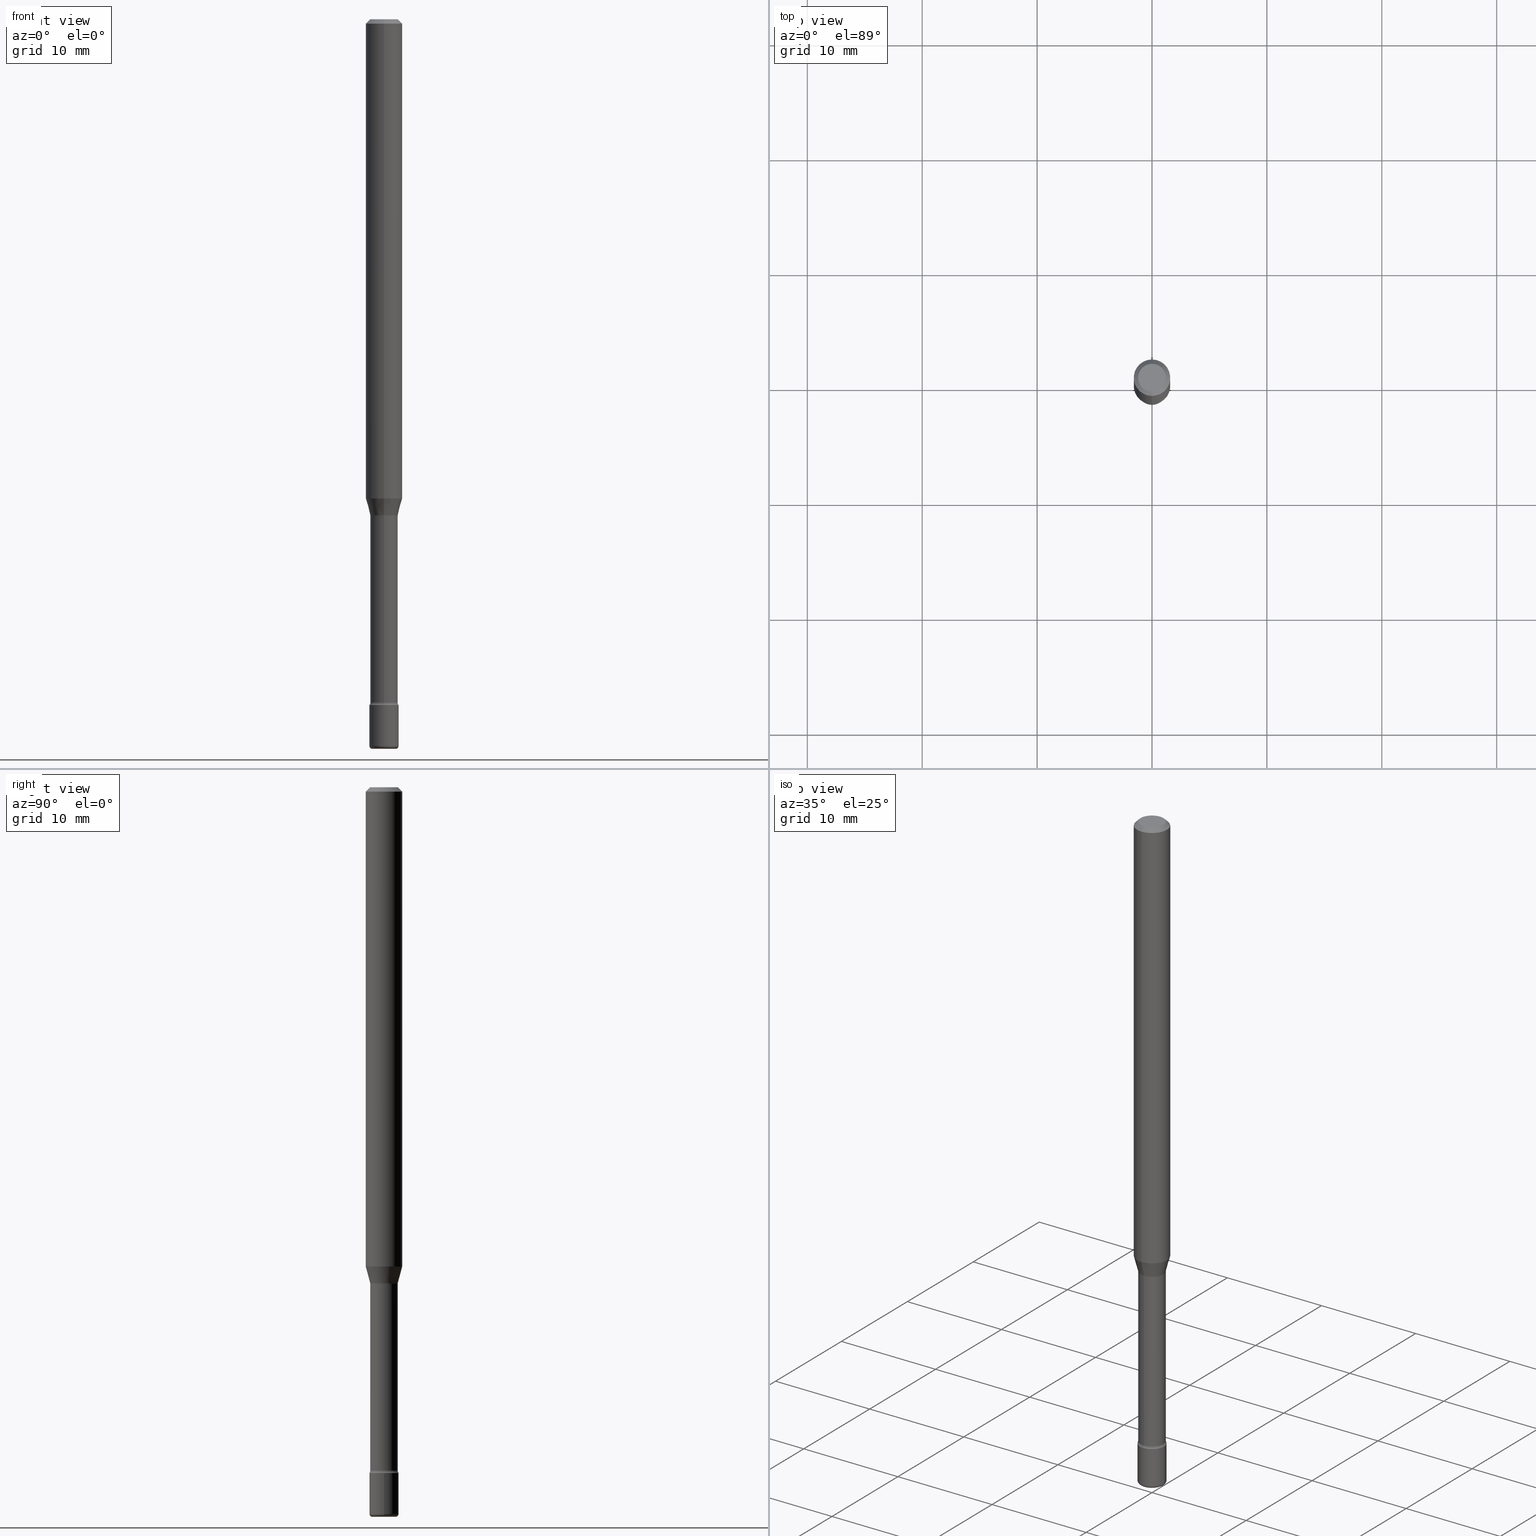
[diagram: canonical four-view strip — front | top / right | iso, engineering-drawing reading convention]
A machine part, canonical four-view strip (front | top / right | iso — engineering-drawing reading convention). The complete STEP part file that produces these views, byte-faithful:
ISO-10303-21;
HEADER;
FILE_DESCRIPTION (( 'STEP AP203' ),
    '1' );
FILE_NAME ('08963.STEP',
    '2024-03-06T20:12:44',
    ( '' ),
    ( '' ),
    'SwSTEP 2.0',
    'SolidWorks 2023',
    '' );
FILE_SCHEMA (( 'CONFIG_CONTROL_DESIGN' ));
ENDSEC;

DATA;
#1 = VERTEX_POINT ( 'NONE', #278 ) ;
#2 = DIRECTION ( 'NONE',  ( -6.982962677686265922E-15, -1.000000000000000000, 5.749913744050249041E-15 ) ) ;
#3 = DIRECTION ( 'NONE',  ( -2.445484649858063703E-29, 3.491458649801748196E-15, 1.000000000000000000 ) ) ;
#4 = AXIS2_PLACEMENT_3D ( 'NONE', #508, #110, #329 ) ;
#5 = AXIS2_PLACEMENT_3D ( 'NONE', #330, #46, #301 ) ;
#6 = PERSON_AND_ORGANIZATION_ROLE ( 'design_supplier' ) ;
#7 = PLANE ( 'NONE',  #221 ) ;
#8 = EDGE_LOOP ( 'NONE', ( #51, #176 ) ) ;
#9 = CC_DESIGN_PERSON_AND_ORGANIZATION_ASSIGNMENT ( #64, #30, ( #14 ) ) ;
#10 = ADVANCED_FACE ( 'NONE', ( #493 ), #106, .T. ) ;
#11 = DIRECTION ( 'NONE',  ( -6.982962677686266711E-15, -1.000000000000000000, 3.491481338843145583E-15 ) ) ;
#12 = ORIENTED_EDGE ( 'NONE', *, *, #192, .T. ) ;
#13 = ADVANCED_BREP_SHAPE_REPRESENTATION ( '08963', ( #469, #461, #223 ), #284 ) ;
#14 = PRODUCT_DEFINITION ( 'UNKNOWN', '', #256, #78 ) ;
#15 = CARTESIAN_POINT ( 'NONE',  ( -4.364351673553916201E-16, -0.06250000000000000000, 6.962895645038553008E-16 ) ) ;
#16 = ORIENTED_EDGE ( 'NONE', *, *, #134, .T. ) ;
#17 = DIRECTION ( 'NONE',  ( -1.000000000000000000, 6.982962677686265922E-15, -4.883557194083112340E-29 ) ) ;
#18 = AXIS2_PLACEMENT_3D ( 'NONE', #75, #546, #66 ) ;
#19 = EDGE_CURVE ( 'NONE', #304, #209, #375, .T. ) ;
#20 = VERTEX_POINT ( 'NONE', #151 ) ;
#21 = DIRECTION ( 'NONE',  ( -2.445484649858063703E-29, 3.491458649801748196E-15, 1.000000000000000000 ) ) ;
#22 = DIRECTION ( 'NONE',  ( -2.445468806185136597E-29, 3.491481338843145583E-15, 1.000000000000000000 ) ) ;
#23 = CARTESIAN_POINT ( 'NONE',  ( -0.05000000000000000971, 3.552713678800501620E-16, -2.459467545127453311E-30 ) ) ;
#24 = CARTESIAN_POINT ( 'NONE',  ( -0.05000000000000004441, -8.338517165839381307E-15, -2.489999999999999769 ) ) ;
#25 = DIRECTION ( 'NONE',  ( -2.445468806185136877E-29, 3.491481338843145188E-15, 1.000000000000000000 ) ) ;
#26 = AXIS2_PLACEMENT_3D ( 'NONE', #49, #3, #94 ) ;
#27 = CARTESIAN_POINT ( 'NONE',  ( -3.281992458512128914E-16, -0.04700000000000593980, -1.701974787463810701 ) ) ;
#28 = CC_DESIGN_APPROVAL ( #293, ( #256 ) ) ;
#29 = DIRECTION ( 'NONE',  ( 1.000000000000000000, -6.982962677686274599E-15, 0.000000000000000000 ) ) ;
#30 = PERSON_AND_ORGANIZATION_ROLE ( 'creator' ) ;
#31 = DIRECTION ( 'NONE',  ( -2.445484649858063983E-29, 3.491458649801747802E-15, 1.000000000000000000 ) ) ;
#32 = DIRECTION ( 'NONE',  ( -1.000000000000000000, 6.982962677686265922E-15, -4.876176775795935793E-29 ) ) ;
#33 = DATE_AND_TIME ( #420, #570 ) ;
#34 = CYLINDRICAL_SURFACE ( 'NONE', #414, 0.05000000000000000971 ) ;
#35 = EDGE_CURVE ( 'NONE', #542, #219, #370, .T. ) ;
#36 = CIRCLE ( 'NONE', #253, 0.05000000000000000971 ) ;
#37 = ORIENTED_EDGE ( 'NONE', *, *, #216, .T. ) ;
#38 = DIRECTION ( 'NONE',  ( 6.982962677686265922E-15, 1.000000000000000000, -3.483106191921935554E-15 ) ) ;
#39 = ORIENTED_EDGE ( 'NONE', *, *, #515, .F. ) ;
#40 = DIRECTION ( 'NONE',  ( 7.105427357600997914E-15, 1.000000000000000000, 0.000000000000000000 ) ) ;
#41 = EDGE_CURVE ( 'NONE', #1, #514, #505, .T. ) ;
#42 = ORIENTED_EDGE ( 'NONE', *, *, #374, .F. ) ;
#43 = CARTESIAN_POINT ( 'NONE',  ( 6.113672015462842613E-29, -8.728703347107864943E-15, -2.500000000000000000 ) ) ;
#44 = CIRCLE ( 'NONE', #300, 0.04751111260566397154 ) ;
#45 = ORIENTED_EDGE ( 'NONE', *, *, #313, .T. ) ;
#46 = DIRECTION ( 'NONE',  ( -2.445484649858063703E-29, 3.491458649801748196E-15, 1.000000000000000000 ) ) ;
#47 = ORIENTED_EDGE ( 'NONE', *, *, #298, .F. ) ;
#48 = APPLICATION_PROTOCOL_DEFINITION ( 'international standard', 'config_control_design', 1994, #62 ) ;
#49 = CARTESIAN_POINT ( 'NONE',  ( -1.169113584055446105E-44, 1.669184350826100908E-30, 4.780733988912460139E-16 ) ) ;
#50 = ADVANCED_FACE ( 'NONE', ( #194 ), #422, .T. ) ;
#51 = ORIENTED_EDGE ( 'NONE', *, *, #336, .T. ) ;
#52 = CIRCLE ( 'NONE', #4, 0.06250000000000000000 ) ;
#53 = ORGANIZATION ( 'UNSPECIFIED', 'UNSPECIFIED', '' ) ;
#54 = CC_DESIGN_SECURITY_CLASSIFICATION ( #303, ( #256 ) ) ;
#55 = CARTESIAN_POINT ( 'NONE',  ( 4.440892098501028481E-16, 0.06249999999999429623, -1.642153212482682978 ) ) ;
#56 = ORIENTED_EDGE ( 'NONE', *, *, #112, .F. ) ;
#57 = DIRECTION ( 'NONE',  ( 6.982962677686265922E-15, 1.000000000000000000, -3.491458649801747802E-15 ) ) ;
#58 = VERTEX_POINT ( 'NONE', #24 ) ;
#59 = EDGE_CURVE ( 'NONE', #437, #436, #52, .T. ) ;
#60 = CARTESIAN_POINT ( 'NONE',  ( -3.317683261006594313E-16, -0.04751111260566989736, -1.698092501787272779 ) ) ;
#61 = ORIENTED_EDGE ( 'NONE', *, *, #451, .F. ) ;
#62 = APPLICATION_CONTEXT ( 'configuration controlled 3d designs of mechanical parts and assemblies' ) ;
#63 = DIRECTION ( 'NONE',  ( -6.982962677686265922E-15, -1.000000000000000000, 3.491458649801748196E-15 ) ) ;
#64 = PERSON_AND_ORGANIZATION ( #444, #53 ) ;
#65 = CARTESIAN_POINT ( 'NONE',  ( 3.552713678801077488E-16, 0.04999999999999183570, -2.350000000000000533 ) ) ;
#66 = DIRECTION ( 'NONE',  ( -6.982962677686272233E-15, -1.000000000000000000, 0.000000000000000000 ) ) ;
#67 = CARTESIAN_POINT ( 'NONE',  ( 4.162153217188190492E-29, -5.942374593435014667E-15, -1.701974787463810923 ) ) ;
#68 = CYLINDRICAL_SURFACE ( 'NONE', #5, 0.04700000000000000705 ) ;
#69 = APPROVAL_STATUS ( 'not_yet_approved' ) ;
#70 = DIRECTION ( 'NONE',  ( -2.445468806185136597E-29, 3.491481338843145583E-15, 1.000000000000000000 ) ) ;
#71 = FACE_OUTER_BOUND ( 'NONE', #532, .T. ) ;
#72 = PERSON_AND_ORGANIZATION_ROLE ( 'design_owner' ) ;
#73 = AXIS2_PLACEMENT_3D ( 'NONE', #489, #449, #103 ) ;
#74 = LINE ( 'NONE', #325, #537 ) ;
#75 = CARTESIAN_POINT ( 'NONE',  ( -4.329436860164915685E-16, -0.06200000000000822215, -2.340999999999999748 ) ) ;
#76 = ADVANCED_FACE ( 'NONE', ( #448 ), #502, .F. ) ;
#77 = CARTESIAN_POINT ( 'NONE',  ( 5.724879565317726717E-29, -8.173504699185892323E-15, -2.340999999999999748 ) ) ;
#78 = DESIGN_CONTEXT ( 'detailed design', #276, 'design' ) ;
#79 =( LENGTH_UNIT ( ) NAMED_UNIT ( * ) SI_UNIT ( $, .METRE. ) );
#80 = CIRCLE ( 'NONE', #390, 0.06250000000000000000 ) ;
#81 = AXIS2_PLACEMENT_3D ( 'NONE', #529, #259, #429 ) ;
#82 = ORIENTED_EDGE ( 'NONE', *, *, #451, .T. ) ;
#83 = DIRECTION ( 'NONE',  ( 1.000000000000000000, 0.000000000000000000, 0.000000000000000000 ) ) ;
#84 = PERSON_AND_ORGANIZATION_ROLE ( 'creator' ) ;
#85 = EDGE_CURVE ( 'NONE', #378, #514, #497, .T. ) ;
#86 = CARTESIAN_POINT ( 'NONE',  ( 0.000000000000000000, 0.000000000000000000, 0.000000000000000000 ) ) ;
#87 = ORIENTED_EDGE ( 'NONE', *, *, #313, .F. ) ;
#88 = LINE ( 'NONE', #161, #302 ) ;
#89 = VECTOR ( 'NONE', #25, 39.37007874015748143 ) ;
#90 = ORIENTED_EDGE ( 'NONE', *, *, #458, .F. ) ;
#91 = CARTESIAN_POINT ( 'NONE',  ( 4.152659147159852925E-29, -5.928819753528663984E-15, -1.698092501787273001 ) ) ;
#92 = CC_DESIGN_PERSON_AND_ORGANIZATION_ASSIGNMENT ( #471, #6, ( #256 ) ) ;
#93 = EDGE_CURVE ( 'NONE', #58, #1, #36, .T. ) ;
#94 = DIRECTION ( 'NONE',  ( -6.982962677686265922E-15, -1.000000000000000000, 3.491458649801746619E-15 ) ) ;
#95 = CARTESIAN_POINT ( 'NONE',  ( 4.162126251656327251E-29, -5.942413209611424938E-15, -1.701974787463810923 ) ) ;
#96 = VERTEX_POINT ( 'NONE', #65 ) ;
#97 = AXIS2_PLACEMENT_3D ( 'NONE', #287, #143, #119 ) ;
#98 = AXIS2_PLACEMENT_3D ( 'NONE', #365, #563, #32 ) ;
#99 = CARTESIAN_POINT ( 'NONE',  ( 0.04000000000000000083, -8.973107040826881753E-15, -2.489999999999999769 ) ) ;
#100 = ORIENTED_EDGE ( 'NONE', *, *, #128, .F. ) ;
#101 = EDGE_CURVE ( 'NONE', #219, #104, #326, .T. ) ;
#102 = COORDINATED_UNIVERSAL_TIME_OFFSET ( 5, 0, .BEHIND. ) ;
#103 = DIRECTION ( 'NONE',  ( 1.000000000000000000, -6.982962677686267499E-15, 4.876176775795936353E-29 ) ) ;
#104 = VERTEX_POINT ( 'NONE', #27 ) ;
#105 = CARTESIAN_POINT ( 'NONE',  ( -3.317683261006594313E-16, -0.04751111260566989736, -1.698092501787272779 ) ) ;
#106 = CYLINDRICAL_SURFACE ( 'NONE', #26, 0.04700000000000000705 ) ;
#107 = AXIS2_PLACEMENT_3D ( 'NONE', #409, #456, #417 ) ;
#108 = CIRCLE ( 'NONE', #327, 0.04749999999999998668 ) ;
#109 = DIRECTION ( 'NONE',  ( -2.445484649858063983E-29, 3.491458649801747802E-15, 1.000000000000000000 ) ) ;
#110 = DIRECTION ( 'NONE',  ( -2.445484649858063703E-29, 3.491458649801748196E-15, 1.000000000000000000 ) ) ;
#111 = FACE_OUTER_BOUND ( 'NONE', #535, .T. ) ;
#112 = EDGE_CURVE ( 'NONE', #207, #308, #80, .T. ) ;
#113 = CARTESIAN_POINT ( 'NONE',  ( 5.746851694535070554E-29, -8.204981146281391784E-15, -2.350000000000000089 ) ) ;
#114 = DIRECTION ( 'NONE',  ( 1.000000000000000000, -6.982962677686273021E-15, 0.000000000000000000 ) ) ;
#115 = CARTESIAN_POINT ( 'NONE',  ( 6.089217327400989947E-29, -8.693788533719431716E-15, -2.489999999999999769 ) ) ;
#116 = CARTESIAN_POINT ( 'NONE',  ( 4.440892098500625669E-16, 0.06250000000000000000, 2.598572332786367763E-16 ) ) ;
#117 = APPROVAL_ROLE ( '' ) ;
#118 = AXIS2_PLACEMENT_3D ( 'NONE', #43, #262, #382 ) ;
#119 = DIRECTION ( 'NONE',  ( -6.982962677686265133E-15, -1.000000000000000000, 5.463695987328526437E-15 ) ) ;
#120 = LOCAL_TIME ( 15, 12, 44.00000000000000000, #286 ) ;
#121 = DIRECTION ( 'NONE',  ( -6.982962677686265922E-15, -1.000000000000000000, 3.483106191921935554E-15 ) ) ;
#122 = ORIENTED_EDGE ( 'NONE', *, *, #435, .F. ) ;
#123 = CIRCLE ( 'NONE', #81, 0.01500000000000003587 ) ;
#124 = ORIENTED_EDGE ( 'NONE', *, *, #41, .F. ) ;
#125 = ORIENTED_EDGE ( 'NONE', *, *, #515, .T. ) ;
#126 = SECURITY_CLASSIFICATION_LEVEL ( 'unclassified' ) ;
#127 = CIRCLE ( 'NONE', #97, 0.05000000000000000278 ) ;
#128 = EDGE_CURVE ( 'NONE', #354, #437, #74, .T. ) ;
#129 = EDGE_LOOP ( 'NONE', ( #125, #12, #440, #87 ) ) ;
#130 = CARTESIAN_POINT ( 'NONE',  ( -3.281992458511972621E-16, -0.04700000000000817413, -2.340999999999999304 ) ) ;
#131 = ORIENTED_EDGE ( 'NONE', *, *, #336, .F. ) ;
#132 = ORIENTED_EDGE ( 'NONE', *, *, #321, .F. ) ;
#133 = DIRECTION ( 'NONE',  ( -1.807323732225336845E-15, -0.2588190451025191297, 0.9659258262890687563 ) ) ;
#134 = EDGE_CURVE ( 'NONE', #20, #96, #127, .T. ) ;
#135 = ORIENTED_EDGE ( 'NONE', *, *, #307, .T. ) ;
#136 = AXIS2_PLACEMENT_3D ( 'NONE', #454, #70, #142 ) ;
#137 = CONICAL_SURFACE ( 'NONE', #273, 0.06250000000000000000, 0.7853981633974485010 ) ;
#138 = DIRECTION ( 'NONE',  ( -6.982962677686266711E-15, -1.000000000000000000, 5.812442539711199378E-15 ) ) ;
#139 = ORIENTED_EDGE ( 'NONE', *, *, #458, .T. ) ;
#140 = DIRECTION ( 'NONE',  ( 2.445484649858063703E-29, -3.491458649801747802E-15, -1.000000000000000000 ) ) ;
#141 = ORIENTED_EDGE ( 'NONE', *, *, #298, .T. ) ;
#142 = DIRECTION ( 'NONE',  ( 1.000000000000000000, -6.982962677686261977E-15, 4.883557194083110659E-29 ) ) ;
#143 = DIRECTION ( 'NONE',  ( -2.445484649858063703E-29, 3.491458649801748196E-15, 1.000000000000000000 ) ) ;
#144 = EDGE_CURVE ( 'NONE', #96, #20, #401, .T. ) ;
#145 = TOROIDAL_SURFACE ( 'NONE', #136, 0.04000000000000000083, 0.01000000000000009041 ) ;
#146 = VECTOR ( 'NONE', #486, 39.37007874015748143 ) ;
#147 = DIRECTION ( 'NONE',  ( -6.982962677686265922E-15, -1.000000000000000000, 5.749913744050249041E-15 ) ) ;
#148 = PERSON_AND_ORGANIZATION ( #444, #53 ) ;
#149 = CARTESIAN_POINT ( 'NONE',  ( 4.015860473841507545E-29, -5.733510038022390740E-15, -1.642153212482682756 ) ) ;
#150 = DIRECTION ( 'NONE',  ( -2.445484649858063703E-29, 3.491458649801748196E-15, 1.000000000000000000 ) ) ;
#151 = CARTESIAN_POINT ( 'NONE',  ( -3.491481338842560938E-16, -0.05000000000000824618, -2.349999999999999645 ) ) ;
#152 = PLANE ( 'NONE',  #98 ) ;
#153 = DATE_AND_TIME ( #239, #511 ) ;
#154 = ADVANCED_FACE ( 'NONE', ( #499 ), #145, .T. ) ;
#155 = DIRECTION ( 'NONE',  ( -2.445468806185136877E-29, 3.491481338843145188E-15, 1.000000000000000000 ) ) ;
#156 = CARTESIAN_POINT ( 'NONE',  ( 6.625640147717000210E-46, -9.457369277628037380E-32, -2.709026492660582810E-17 ) ) ;
#157 = CIRCLE ( 'NONE', #318, 0.06250000000000000000 ) ;
#158 = AXIS2_PLACEMENT_3D ( 'NONE', #172, #462, #40 ) ;
#159 = CC_DESIGN_APPROVAL ( #450, ( #303 ) ) ;
#160 = DIRECTION ( 'NONE',  ( -6.982962677686265133E-15, -1.000000000000000000, 3.491458649801748196E-15 ) ) ;
#161 = CARTESIAN_POINT ( 'NONE',  ( 3.375867592983881173E-16, 0.04751111260565804573, -1.698092501787273223 ) ) ;
#162 = EDGE_LOOP ( 'NONE', ( #90, #430, #433, #523 ) ) ;
#163 = PRODUCT_RELATED_PRODUCT_CATEGORY ( 'detail', '', ( #306 ) ) ;
#164 = CARTESIAN_POINT ( 'NONE',  ( 5.746851694535070554E-29, -8.204981146281391784E-15, -2.350000000000000089 ) ) ;
#165 = CONICAL_SURFACE ( 'NONE', #213, 0.06250000000000000000, 0.7853981633974485010 ) ;
#166 = ORIENTED_EDGE ( 'NONE', *, *, #128, .T. ) ;
#167 = FACE_OUTER_BOUND ( 'NONE', #426, .T. ) ;
#168 = ORIENTED_EDGE ( 'NONE', *, *, #441, .T. ) ;
#169 = FACE_OUTER_BOUND ( 'NONE', #272, .T. ) ;
#170 = CALENDAR_DATE ( 2024, 6, 3 ) ;
#171 = ADVANCED_FACE ( 'NONE', ( #290 ), #7, .F. ) ;
#172 = CARTESIAN_POINT ( 'NONE',  ( 4.405364961713037245E-16, 0.06199999999999406680, -1.701974787463811145 ) ) ;
#173 = ORIENTED_EDGE ( 'NONE', *, *, #208, .T. ) ;
#174 = AXIS2_PLACEMENT_3D ( 'NONE', #99, #11, #179 ) ;
#175 = DIRECTION ( 'NONE',  ( 7.105427357601001859E-15, 1.000000000000000000, -3.491481338843145583E-15 ) ) ;
#176 = ORIENTED_EDGE ( 'NONE', *, *, #85, .T. ) ;
#177 = EDGE_CURVE ( 'NONE', #104, #219, #195, .T. ) ;
#178 = PERSON_AND_ORGANIZATION_ROLE ( 'classification_officer' ) ;
#179 = DIRECTION ( 'NONE',  ( 1.000000000000000000, -6.982962677686269077E-15, 0.000000000000000000 ) ) ;
#180 = ORIENTED_EDGE ( 'NONE', *, *, #35, .T. ) ;
#181 = CARTESIAN_POINT ( 'NONE',  ( -3.773273898774339776E-16, -0.04749999999999998668, 1.387540209389771689E-16 ) ) ;
#182 = VERTEX_POINT ( 'NONE', #181 ) ;
#183 = CIRCLE ( 'NONE', #438, 0.01500000000000003587 ) ;
#184 = CIRCLE ( 'NONE', #118, 0.04000000000000000083 ) ;
#185 = DATE_AND_TIME ( #170, #562 ) ;
#186 = LOCAL_TIME ( 15, 12, 44.00000000000000000, #102 ) ;
#187 = DIRECTION ( 'NONE',  ( -2.445484649858063703E-29, 3.491458649801748196E-15, 1.000000000000000000 ) ) ;
#188 = ORIENTED_EDGE ( 'NONE', *, *, #483, .F. ) ;
#189 = DIRECTION ( 'NONE',  ( -6.982962677686265922E-15, -1.000000000000000000, 3.491458649801748196E-15 ) ) ;
#190 = APPLICATION_PROTOCOL_DEFINITION ( 'international standard', 'config_control_design', 1994, #276 ) ;
#191 = DIRECTION ( 'NONE',  ( 1.000000000000000000, -6.982962677686274599E-15, 0.000000000000000000 ) ) ;
#192 = EDGE_CURVE ( 'NONE', #304, #58, #548, .T. ) ;
#193 = CARTESIAN_POINT ( 'NONE',  ( 4.152659147159852925E-29, -5.928819753528663984E-15, -1.698092501787273001 ) ) ;
#194 = FACE_OUTER_BOUND ( 'NONE', #345, .T. ) ;
#195 = CIRCLE ( 'NONE', #367, 0.04699999999999999317 ) ;
#196 = AXIS2_PLACEMENT_3D ( 'NONE', #377, #335, #455 ) ;
#197 = CARTESIAN_POINT ( 'NONE',  ( 3.668226974787102280E-31, -5.237187974702632377E-17, -0.01500000000000002720 ) ) ;
#198 = CARTESIAN_POINT ( 'NONE',  ( 5.746888927166449379E-29, -8.204927827034108794E-15, -2.350000000000000089 ) ) ;
#199 = ADVANCED_FACE ( 'NONE', ( #230 ), #202, .F. ) ;
#200 = DIRECTION ( 'NONE',  ( 2.445484649858063703E-29, -3.491458649801748196E-15, -1.000000000000000000 ) ) ;
#201 = DIRECTION ( 'NONE',  ( -2.445484649858063703E-29, 3.491458649801748196E-15, 1.000000000000000000 ) ) ;
#202 = TOROIDAL_SURFACE ( 'NONE', #527, 0.06200000000000004813, 0.01500000000000004281 ) ;
#203 = LINE ( 'NONE', #116, #368 ) ;
#204 = CIRCLE ( 'NONE', #234, 0.04749999999999998668 ) ;
#205 = APPROVAL_PERSON_ORGANIZATION ( #445, #450, #481 ) ;
#206 = PERSON_AND_ORGANIZATION ( #444, #53 ) ;
#207 = VERTEX_POINT ( 'NONE', #274 ) ;
#208 = EDGE_CURVE ( 'NONE', #207, #436, #355, .T. ) ;
#209 = VERTEX_POINT ( 'NONE', #353 ) ;
#210 = CARTESIAN_POINT ( 'NONE',  ( 4.152659147159852925E-29, -5.928819753528663984E-15, -1.698092501787273001 ) ) ;
#211 = ORIENTED_EDGE ( 'NONE', *, *, #101, .T. ) ;
#212 = LENGTH_MEASURE_WITH_UNIT ( LENGTH_MEASURE( 0.02539999999999999897 ), #79 );
#213 = AXIS2_PLACEMENT_3D ( 'NONE', #197, #200, #503 ) ;
#214 = EDGE_LOOP ( 'NONE', ( #37, #484, #56, #47 ) ) ;
#215 = DIRECTION ( 'NONE',  ( 1.000000000000000000, -6.982962677686265922E-15, 4.876176775795935793E-29 ) ) ;
#216 = EDGE_CURVE ( 'NONE', #222, #266, #44, .T. ) ;
#217 = CARTESIAN_POINT ( 'NONE',  ( 0.05000000000000000278, -8.554129280165706697E-15, -2.350000000000000089 ) ) ;
#218 = PERSON_AND_ORGANIZATION ( #444, #53 ) ;
#219 = VERTEX_POINT ( 'NONE', #394 ) ;
#220 = CARTESIAN_POINT ( 'NONE',  ( -0.04000000000000000083, -8.391501709321602173E-15, -2.500000000000000000 ) ) ;
#221 = AXIS2_PLACEMENT_3D ( 'NONE', #324, #140, #57 ) ;
#222 = VERTEX_POINT ( 'NONE', #105 ) ;
#223 = AXIS2_PLACEMENT_3D ( 'NONE', #86, #516, #83 ) ;
#224 = CARTESIAN_POINT ( 'NONE',  ( 4.162126251656327251E-29, -5.942413209611424938E-15, -1.701974787463810923 ) ) ;
#225 = ORIENTED_EDGE ( 'NONE', *, *, #564, .T. ) ;
#226 = CC_DESIGN_DATE_AND_TIME_ASSIGNMENT ( #153, #408, ( #14 ) ) ;
#227 = DIRECTION ( 'NONE',  ( -2.445484649858063703E-29, 3.491458649801748196E-15, 1.000000000000000000 ) ) ;
#228 = ORIENTED_EDGE ( 'NONE', *, *, #397, .F. ) ;
#229 = COORDINATED_UNIVERSAL_TIME_OFFSET ( 5, 0, .BEHIND. ) ;
#230 = FACE_OUTER_BOUND ( 'NONE', #347, .T. ) ;
#231 = ORIENTED_EDGE ( 'NONE', *, *, #208, .F. ) ;
#232 = ORIENTED_EDGE ( 'NONE', *, *, #59, .F. ) ;
#233 = VECTOR ( 'NONE', #31, 39.37007874015748143 ) ;
#234 = AXIS2_PLACEMENT_3D ( 'NONE', #558, #512, #160 ) ;
#235 = FACE_OUTER_BOUND ( 'NONE', #356, .T. ) ;
#236 = EDGE_CURVE ( 'NONE', #222, #104, #183, .T. ) ;
#237 = DIRECTION ( 'NONE',  ( 1.000000000000000000, -6.982962677686261977E-15, 4.883557194083110659E-29 ) ) ;
#238 = FACE_OUTER_BOUND ( 'NONE', #393, .T. ) ;
#239 = CALENDAR_DATE ( 2024, 6, 3 ) ;
#240 = LINE ( 'NONE', #23, #89 ) ;
#241 = CALENDAR_DATE ( 2024, 6, 3 ) ;
#242 = DIRECTION ( 'NONE',  ( -6.982962677686265922E-15, -1.000000000000000000, 3.491458649801747802E-15 ) ) ;
#243 = ADVANCED_FACE ( 'NONE', ( #482 ), #283, .F. ) ;
#244 = CLOSED_SHELL ( 'NONE', ( #279, #154, #551, #388, #50, #358 ) ) ;
#245 = CIRCLE ( 'NONE', #423, 0.06250000000000000000 ) ;
#246 = CYLINDRICAL_SURFACE ( 'NONE', #568, 0.06250000000000000000 ) ;
#247 = PERSON_AND_ORGANIZATION ( #444, #53 ) ;
#248 = DIRECTION ( 'NONE',  ( -2.445484649858063703E-29, 3.491458649801748196E-15, 1.000000000000000000 ) ) ;
#249 = DIRECTION ( 'NONE',  ( -2.445468806185136597E-29, 3.491481338843145583E-15, 1.000000000000000000 ) ) ;
#250 = COORDINATED_UNIVERSAL_TIME_OFFSET ( 5, 0, .BEHIND. ) ;
#251 = DIRECTION ( 'NONE',  ( -2.445484649858063703E-29, 3.491458649801748196E-15, 1.000000000000000000 ) ) ;
#252 = ORIENTED_EDGE ( 'NONE', *, *, #504, .T. ) ;
#253 = AXIS2_PLACEMENT_3D ( 'NONE', #115, #557, #333 ) ;
#254 = PERSON_AND_ORGANIZATION ( #444, #53 ) ;
#255 = AXIS2_PLACEMENT_3D ( 'NONE', #77, #299, #407 ) ;
#256 = PRODUCT_DEFINITION_FORMATION_WITH_SPECIFIED_SOURCE ( 'ANY', '', #306, .NOT_KNOWN. ) ;
#257 = EDGE_CURVE ( 'NONE', #182, #436, #398, .T. ) ;
#258 = ORIENTED_EDGE ( 'NONE', *, *, #177, .F. ) ;
#259 = DIRECTION ( 'NONE',  ( 1.000000000000000000, -7.105427357601001070E-15, 4.926315230681463443E-29 ) ) ;
#260 = FACE_OUTER_BOUND ( 'NONE', #214, .T. ) ;
#261 = EDGE_LOOP ( 'NONE', ( #480, #381, #386, #311 ) ) ;
#262 = DIRECTION ( 'NONE',  ( -2.445468806185136597E-29, 3.491481338843145583E-15, 1.000000000000000000 ) ) ;
#263 = AXIS2_PLACEMENT_3D ( 'NONE', #113, #366, #191 ) ;
#264 = AXIS2_PLACEMENT_3D ( 'NONE', #91, #473, #2 ) ;
#265 = APPROVAL_PERSON_ORGANIZATION ( #148, #293, #117 ) ;
#266 = VERTEX_POINT ( 'NONE', #322 ) ;
#267 = CARTESIAN_POINT ( 'NONE',  ( -1.169113584055446105E-44, 1.669184350826100908E-30, 4.780733988912460139E-16 ) ) ;
#268 = DIMENSIONAL_EXPONENTS ( 1.000000000000000000, 0.000000000000000000, 0.000000000000000000, 0.000000000000000000, 0.000000000000000000, 0.000000000000000000, 0.000000000000000000 ) ;
#269 = ORIENTED_EDGE ( 'NONE', *, *, #418, .T. ) ;
#270 = LINE ( 'NONE', #60, #402 ) ;
#271 = CC_DESIGN_PERSON_AND_ORGANIZATION_ASSIGNMENT ( #218, #178, ( #303 ) ) ;
#272 = EDGE_LOOP ( 'NONE', ( #530, #488, #540, #100 ) ) ;
#273 = AXIS2_PLACEMENT_3D ( 'NONE', #524, #387, #38 ) ;
#274 = CARTESIAN_POINT ( 'NONE',  ( -4.364351673553512403E-16, -0.06250000000000570377, -1.642153212482682312 ) ) ;
#275 = EDGE_LOOP ( 'NONE', ( #475, #225, #211, #547 ) ) ;
#276 = APPLICATION_CONTEXT ( 'configuration controlled 3d designs of mechanical parts and assemblies' ) ;
#277 = FACE_OUTER_BOUND ( 'NONE', #275, .T. ) ;
#278 = CARTESIAN_POINT ( 'NONE',  ( 0.05000000000000004441, -9.042936667603745051E-15, -2.489999999999999769 ) ) ;
#279 = ADVANCED_FACE ( 'NONE', ( #235 ), #405, .T. ) ;
#280 = SHAPE_DEFINITION_REPRESENTATION ( #396, #13 ) ;
#281 = DIRECTION ( 'NONE',  ( -6.982962677686265922E-15, -1.000000000000000000, 3.491458649801748196E-15 ) ) ;
#282 = DIRECTION ( 'NONE',  ( -6.982962677686265133E-15, -1.000000000000000000, 5.463695987328526437E-15 ) ) ;
#283 = TOROIDAL_SURFACE ( 'NONE', #517, 0.06200000000000000649, 0.01500000000000003587 ) ;
#284 =( GEOMETRIC_REPRESENTATION_CONTEXT ( 3 ) GLOBAL_UNCERTAINTY_ASSIGNED_CONTEXT ( ( #297 ) ) GLOBAL_UNIT_ASSIGNED_CONTEXT ( ( #477, #305, #434 ) ) REPRESENTATION_CONTEXT ( 'NONE', 'WORKASPACE' ) );
#285 = DIRECTION ( 'NONE',  ( -4.851104656540965064E-15, -0.7071067811865501263, -0.7071067811865449082 ) ) ;
#286 = COORDINATED_UNIVERSAL_TIME_OFFSET ( 5, 0, .BEHIND. ) ;
#287 = CARTESIAN_POINT ( 'NONE',  ( 5.746888927166449379E-29, -8.204927827034108794E-15, -2.350000000000000089 ) ) ;
#288 = FACE_OUTER_BOUND ( 'NONE', #162, .T. ) ;
#289 = ADVANCED_FACE ( 'NONE', ( #277 ), #349, .F. ) ;
#290 = FACE_OUTER_BOUND ( 'NONE', #339, .T. ) ;
#291 = CARTESIAN_POINT ( 'NONE',  ( 3.668226974787102280E-31, -5.237187974702632377E-17, -0.01500000000000002720 ) ) ;
#292 = DIRECTION ( 'NONE',  ( -2.445484649858063703E-29, 3.491458649801748196E-15, 1.000000000000000000 ) ) ;
#293 = APPROVAL ( #507, 'UNSPECIFIED' ) ;
#294 = VECTOR ( 'NONE', #109, 39.37007874015748143 ) ;
#295 = FACE_OUTER_BOUND ( 'NONE', #472, .T. ) ;
#296 = DIRECTION ( 'NONE',  ( -2.445484649858063703E-29, 3.491458649801748196E-15, 1.000000000000000000 ) ) ;
#297 = UNCERTAINTY_MEASURE_WITH_UNIT (LENGTH_MEASURE( 1.000000000000000082E-05 ), #477, 'distance_accuracy_value', 'NONE');
#298 = EDGE_CURVE ( 'NONE', #222, #207, #270, .T. ) ;
#299 = DIRECTION ( 'NONE',  ( -2.445484649858063703E-29, 3.491458649801748196E-15, 1.000000000000000000 ) ) ;
#300 = AXIS2_PLACEMENT_3D ( 'NONE', #357, #361, #538 ) ;
#301 = DIRECTION ( 'NONE',  ( -6.982962677686265922E-15, -1.000000000000000000, 3.491458649801746619E-15 ) ) ;
#302 = VECTOR ( 'NONE', #427, 39.37007874015748143 ) ;
#303 = SECURITY_CLASSIFICATION ( '', '', #126 ) ;
#304 = VERTEX_POINT ( 'NONE', #220 ) ;
#305 =( NAMED_UNIT ( * ) PLANE_ANGLE_UNIT ( ) SI_UNIT ( $, .RADIAN. ) );
#306 = PRODUCT ( '08963', '08963', '', ( #425 ) ) ;
#307 = EDGE_CURVE ( 'NONE', #308, #207, #157, .T. ) ;
#308 = VERTEX_POINT ( 'NONE', #55 ) ;
#309 = ORIENTED_EDGE ( 'NONE', *, *, #59, .T. ) ;
#310 = FACE_OUTER_BOUND ( 'NONE', #8, .T. ) ;
#311 = ORIENTED_EDGE ( 'NONE', *, *, #177, .T. ) ;
#312 = APPROVAL ( #69, 'UNSPECIFIED' ) ;
#313 = EDGE_CURVE ( 'NONE', #209, #1, #447, .T. ) ;
#314 = CARTESIAN_POINT ( 'NONE',  ( -4.329436860165069019E-16, -0.06200000000000594619, -1.701974787463810701 ) ) ;
#315 = ORIENTED_EDGE ( 'NONE', *, *, #380, .T. ) ;
#316 = CARTESIAN_POINT ( 'NONE',  ( -3.281992458512545531E-16, -0.04700000000000000705, 6.421719554319281504E-16 ) ) ;
#317 = VECTOR ( 'NONE', #285, 39.37007874015748143 ) ;
#318 = AXIS2_PLACEMENT_3D ( 'NONE', #363, #544, #391 ) ;
#319 = CARTESIAN_POINT ( 'NONE',  ( -4.287811248607203282E-16, -0.06250000000000005551, -0.01499999999999981036 ) ) ;
#320 = ORIENTED_EDGE ( 'NONE', *, *, #192, .F. ) ;
#321 = EDGE_CURVE ( 'NONE', #526, #104, #534, .T. ) ;
#322 = CARTESIAN_POINT ( 'NONE',  ( 3.908379845742454334E-16, 0.04751111260565804573, -1.698092501787273223 ) ) ;
#323 = ORIENTED_EDGE ( 'NONE', *, *, #441, .F. ) ;
#324 = CARTESIAN_POINT ( 'NONE',  ( 3.316907271900975110E-16, 0.04749999999999998668, 5.964728111673710049E-17 ) ) ;
#325 = CARTESIAN_POINT ( 'NONE',  ( 4.364351673553919652E-16, 0.06249999999999995143, -0.01500000000000024578 ) ) ;
#326 = CIRCLE ( 'NONE', #560, 0.04699999999999999317 ) ;
#327 = AXIS2_PLACEMENT_3D ( 'NONE', #156, #337, #513 ) ;
#328 = CARTESIAN_POINT ( 'NONE',  ( 3.840629472727447874E-16, 0.04749999999999998668, -1.929345507921888190E-16 ) ) ;
#329 = DIRECTION ( 'NONE',  ( -6.982962677686265922E-15, -1.000000000000000000, 3.483106191921935554E-15 ) ) ;
#330 = CARTESIAN_POINT ( 'NONE',  ( -1.169113584055446105E-44, 1.669184350826100908E-30, 4.780733988912460139E-16 ) ) ;
#331 = CARTESIAN_POINT ( 'NONE',  ( 3.339550858072470388E-16, 0.04700000000000000705, 3.139748423505638775E-16 ) ) ;
#332 = CARTESIAN_POINT ( 'NONE',  ( 4.440892098501030453E-16, 0.06249999999999995143, -0.01500000000000024578 ) ) ;
#333 = DIRECTION ( 'NONE',  ( 1.000000000000000000, -6.982962677686273021E-15, 0.000000000000000000 ) ) ;
#334 = CIRCLE ( 'NONE', #158, 0.01500000000000003587 ) ;
#335 = DIRECTION ( 'NONE',  ( -2.445484649858063703E-29, 3.491458649801748196E-15, 1.000000000000000000 ) ) ;
#336 = EDGE_CURVE ( 'NONE', #514, #378, #476, .T. ) ;
#337 = DIRECTION ( 'NONE',  ( -2.445484649858063703E-29, 3.491458649801748196E-15, 1.000000000000000000 ) ) ;
#338 = ORIENTED_EDGE ( 'NONE', *, *, #435, .T. ) ;
#339 = EDGE_LOOP ( 'NONE', ( #168, #269 ) ) ;
#340 = AXIS2_PLACEMENT_3D ( 'NONE', #406, #372, #242 ) ;
#341 = DIRECTION ( 'NONE',  ( -6.982962677686265922E-15, -1.000000000000000000, 5.749913744050249041E-15 ) ) ;
#342 = APPROVAL_DATE_TIME ( #33, #293 ) ;
#343 = APPROVAL_PERSON_ORGANIZATION ( #247, #312, #559 ) ;
#344 = EDGE_CURVE ( 'NONE', #542, #526, #498, .T. ) ;
#345 = EDGE_LOOP ( 'NONE', ( #320, #465, #45, #350 ) ) ;
#346 = PLANE ( 'NONE',  #404 ) ;
#347 = EDGE_LOOP ( 'NONE', ( #362, #252, #399, #122 ) ) ;
#348 = CYLINDRICAL_SURFACE ( 'NONE', #528, 0.06250000000000000000 ) ;
#349 = TOROIDAL_SURFACE ( 'NONE', #384, 0.06200000000000000649, 0.01500000000000003587 ) ;
#350 = ORIENTED_EDGE ( 'NONE', *, *, #93, .F. ) ;
#351 = ADVANCED_FACE ( 'NONE', ( #111 ), #165, .T. ) ;
#352 = DATE_AND_TIME ( #533, #186 ) ;
#353 = CARTESIAN_POINT ( 'NONE',  ( 0.04000000000000000083, -9.008021854215314980E-15, -2.500000000000000000 ) ) ;
#354 = VERTEX_POINT ( 'NONE', #328 ) ;
#355 = LINE ( 'NONE', #15, #294 ) ;
#356 = EDGE_LOOP ( 'NONE', ( #315, #139, #131, #124 ) ) ;
#357 = CARTESIAN_POINT ( 'NONE',  ( 4.152659147159852925E-29, -5.928819753528663984E-15, -1.698092501787273001 ) ) ;
#358 = ADVANCED_FACE ( 'NONE', ( #288 ), #34, .T. ) ;
#359 = ORIENTED_EDGE ( 'NONE', *, *, #134, .F. ) ;
#360 = TOROIDAL_SURFACE ( 'NONE', #549, 0.06200000000000004813, 0.01500000000000004281 ) ;
#361 = DIRECTION ( 'NONE',  ( -2.445484649858063703E-29, 3.491458649801748196E-15, 1.000000000000000000 ) ) ;
#362 = ORIENTED_EDGE ( 'NONE', *, *, #344, .F. ) ;
#363 = CARTESIAN_POINT ( 'NONE',  ( 4.015860473841507545E-29, -5.733510038022390740E-15, -1.642153212482682756 ) ) ;
#364 = DIRECTION ( 'NONE',  ( 4.937700262164548831E-15, 0.7071067811865452413, -0.7071067811865497932 ) ) ;
#365 = CARTESIAN_POINT ( 'NONE',  ( 2.793185071075117657E-16, 0.03999999999999127864, -2.500000000000000000 ) ) ;
#366 = DIRECTION ( 'NONE',  ( -2.445468806185136597E-29, 3.491481338843145583E-15, 1.000000000000000000 ) ) ;
#367 = AXIS2_PLACEMENT_3D ( 'NONE', #531, #227, #138 ) ;
#368 = VECTOR ( 'NONE', #500, 39.37007874015748143 ) ;
#369 = CARTESIAN_POINT ( 'NONE',  ( 6.089217327400989947E-29, -8.693788533719431716E-15, -2.489999999999999769 ) ) ;
#370 = LINE ( 'NONE', #331, #233 ) ;
#371 = CARTESIAN_POINT ( 'NONE',  ( 0.000000000000000000, 0.000000000000000000, 0.000000000000000000 ) ) ;
#372 = DIRECTION ( 'NONE',  ( -2.445484649858063703E-29, 3.491458649801747802E-15, 1.000000000000000000 ) ) ;
#373 = CARTESIAN_POINT ( 'NONE',  ( -1.169113584055446105E-44, 1.669184350826100908E-30, 4.780733988912460139E-16 ) ) ;
#374 = EDGE_CURVE ( 'NONE', #308, #437, #203, .T. ) ;
#375 = CIRCLE ( 'NONE', #107, 0.04000000000000000083 ) ;
#376 = AXIS2_PLACEMENT_3D ( 'NONE', #210, #521, #341 ) ;
#377 = CARTESIAN_POINT ( 'NONE',  ( 5.724879565317726717E-29, -8.173504699185892323E-15, -2.340999999999999748 ) ) ;
#378 = VERTEX_POINT ( 'NONE', #419 ) ;
#379 = DIRECTION ( 'NONE',  ( -2.445484649858063703E-29, 3.491458649801748196E-15, 1.000000000000000000 ) ) ;
#380 = EDGE_CURVE ( 'NONE', #1, #58, #487, .T. ) ;
#381 = ORIENTED_EDGE ( 'NONE', *, *, #216, .F. ) ;
#382 = DIRECTION ( 'NONE',  ( 1.000000000000000000, -6.982962677686259611E-15, 0.000000000000000000 ) ) ;
#383 = EDGE_LOOP ( 'NONE', ( #82, #180, #258, #132 ) ) ;
#384 = AXIS2_PLACEMENT_3D ( 'NONE', #224, #21, #189 ) ;
#385 = ORIENTED_EDGE ( 'NONE', *, *, #344, .T. ) ;
#386 = ORIENTED_EDGE ( 'NONE', *, *, #236, .T. ) ;
#387 = DIRECTION ( 'NONE',  ( 2.445484649858063703E-29, -3.491458649801748196E-15, -1.000000000000000000 ) ) ;
#388 = ADVANCED_FACE ( 'NONE', ( #238 ), #152, .T. ) ;
#389 = ORIENTED_EDGE ( 'NONE', *, *, #321, .T. ) ;
#390 = AXIS2_PLACEMENT_3D ( 'NONE', #149, #292, #452 ) ;
#391 = DIRECTION ( 'NONE',  ( -6.982962677686265922E-15, -1.000000000000000000, 4.370956789862821150E-15 ) ) ;
#392 = CIRCLE ( 'NONE', #376, 0.04751111260566397154 ) ;
#393 = EDGE_LOOP ( 'NONE', ( #39, #395 ) ) ;
#394 = CARTESIAN_POINT ( 'NONE',  ( 3.339550858073043792E-16, 0.04699999999999405348, -1.701974787463811145 ) ) ;
#395 = ORIENTED_EDGE ( 'NONE', *, *, #19, .F. ) ;
#396 = PRODUCT_DEFINITION_SHAPE ( 'NONE', 'NONE',  #14 ) ;
#397 = EDGE_CURVE ( 'NONE', #436, #437, #245, .T. ) ;
#398 = LINE ( 'NONE', #319, #317 ) ;
#399 = ORIENTED_EDGE ( 'NONE', *, *, #144, .T. ) ;
#400 = DIRECTION ( 'NONE',  ( -6.982962677686268288E-15, -1.000000000000000000, 0.000000000000000000 ) ) ;
#401 = CIRCLE ( 'NONE', #509, 0.05000000000000000278 ) ;
#402 = VECTOR ( 'NONE', #133, 39.37007874015748143 ) ;
#403 = ORIENTED_EDGE ( 'NONE', *, *, #144, .F. ) ;
#404 = AXIS2_PLACEMENT_3D ( 'NONE', #164, #571, #215 ) ;
#405 = CYLINDRICAL_SURFACE ( 'NONE', #73, 0.05000000000000000971 ) ;
#406 = CARTESIAN_POINT ( 'NONE',  ( 3.491481338843707252E-16, 0.04999999999999180100, -2.350000000000000533 ) ) ;
#407 = DIRECTION ( 'NONE',  ( -6.982962677686265922E-15, -1.000000000000000000, 5.812442539711197800E-15 ) ) ;
#408 = DATE_TIME_ROLE ( 'creation_date' ) ;
#409 = CARTESIAN_POINT ( 'NONE',  ( 6.113672015462842613E-29, -8.728703347107864943E-15, -2.500000000000000000 ) ) ;
#410 = ADVANCED_FACE ( 'NONE', ( #71 ), #246, .T. ) ;
#411 = CARTESIAN_POINT ( 'NONE',  ( -4.364351673553912750E-16, -0.06250000000000005551, -0.01499999999999981036 ) ) ;
#412 = DIRECTION ( 'NONE',  ( -2.445484649858063703E-29, 3.491458649801748196E-15, 1.000000000000000000 ) ) ;
#413 = VECTOR ( 'NONE', #155, 39.37007874015748143 ) ;
#414 = AXIS2_PLACEMENT_3D ( 'NONE', #371, #249, #552 ) ;
#415 = DIRECTION ( 'NONE',  ( -6.982962677686265922E-15, -1.000000000000000000, 3.491458649801747407E-15 ) ) ;
#416 = APPROVAL_DATE_TIME ( #553, #312 ) ;
#417 = DIRECTION ( 'NONE',  ( 1.000000000000000000, -6.982962677686259611E-15, 0.000000000000000000 ) ) ;
#418 = EDGE_CURVE ( 'NONE', #182, #354, #204, .T. ) ;
#419 = CARTESIAN_POINT ( 'NONE',  ( -0.05000000000000000278, -8.094113472120361341E-15, -2.350000000000000089 ) ) ;
#420 = CALENDAR_DATE ( 2024, 6, 3 ) ;
#421 = DIRECTION ( 'NONE',  ( -2.445468806185136597E-29, 3.491481338843145583E-15, 1.000000000000000000 ) ) ;
#422 = TOROIDAL_SURFACE ( 'NONE', #463, 0.04000000000000000083, 0.01000000000000009041 ) ;
#423 = AXIS2_PLACEMENT_3D ( 'NONE', #291, #201, #121 ) ;
#424 = ORIENTED_EDGE ( 'NONE', *, *, #101, .F. ) ;
#425 = MECHANICAL_CONTEXT ( 'NONE', #62, 'mechanical' ) ;
#426 = EDGE_LOOP ( 'NONE', ( #42, #135, #173, #232 ) ) ;
#427 = DIRECTION ( 'NONE',  ( 1.839019923739607021E-15, 0.2588190451025259020, 0.9659258262890669799 ) ) ;
#428 = CC_DESIGN_DATE_AND_TIME_ASSIGNMENT ( #352, #536, ( #303 ) ) ;
#429 = DIRECTION ( 'NONE',  ( 7.105427357601001859E-15, 1.000000000000000000, 0.000000000000000000 ) ) ;
#430 = ORIENTED_EDGE ( 'NONE', *, *, #93, .T. ) ;
#431 = DIRECTION ( 'NONE',  ( -6.982962677686265922E-15, -1.000000000000000000, 3.491458649801747407E-15 ) ) ;
#432 = CIRCLE ( 'NONE', #255, 0.04700000000000000705 ) ;
#433 = ORIENTED_EDGE ( 'NONE', *, *, #41, .T. ) ;
#434 =( NAMED_UNIT ( * ) SI_UNIT ( $, .STERADIAN. ) SOLID_ANGLE_UNIT ( ) );
#435 = EDGE_CURVE ( 'NONE', #526, #20, #518, .T. ) ;
#436 = VERTEX_POINT ( 'NONE', #411 ) ;
#437 = VERTEX_POINT ( 'NONE', #332 ) ;
#438 = AXIS2_PLACEMENT_3D ( 'NONE', #314, #17, #400 ) ;
#439 = DIRECTION ( 'NONE',  ( -2.445484649858063703E-29, 3.491458649801748196E-15, 1.000000000000000000 ) ) ;
#440 = ORIENTED_EDGE ( 'NONE', *, *, #380, .F. ) ;
#441 = EDGE_CURVE ( 'NONE', #354, #182, #108, .T. ) ;
#442 = CARTESIAN_POINT ( 'NONE',  ( 5.746851694535070554E-29, -8.204981146281391784E-15, -2.350000000000000089 ) ) ;
#443 = ORIENTED_EDGE ( 'NONE', *, *, #112, .T. ) ;
#444 = PERSON ( 'UNSPECIFIED', 'UNSPECIFIED', 'UNSPECIFIED', ('UNSPECIFIED'), ('UNSPECIFIED'), ('UNSPECIFIED') ) ;
#445 = PERSON_AND_ORGANIZATION ( #444, #53 ) ;
#446 = EDGE_LOOP ( 'NONE', ( #359, #403 ) ) ;
#447 = CIRCLE ( 'NONE', #174, 0.01000000000000009041 ) ;
#448 = FACE_OUTER_BOUND ( 'NONE', #446, .T. ) ;
#449 = DIRECTION ( 'NONE',  ( -2.445468806185136597E-29, 3.491481338843145583E-15, 1.000000000000000000 ) ) ;
#450 = APPROVAL ( #478, 'UNSPECIFIED' ) ;
#451 = EDGE_CURVE ( 'NONE', #526, #542, #432, .T. ) ;
#452 = DIRECTION ( 'NONE',  ( -6.982962677686265922E-15, -1.000000000000000000, 4.370956789862821150E-15 ) ) ;
#453 = FACE_OUTER_BOUND ( 'NONE', #490, .T. ) ;
#454 = CARTESIAN_POINT ( 'NONE',  ( 6.089217327400989947E-29, -8.693788533719431716E-15, -2.489999999999999769 ) ) ;
#455 = DIRECTION ( 'NONE',  ( -6.982962677686265922E-15, -1.000000000000000000, 5.812442539711197800E-15 ) ) ;
#456 = DIRECTION ( 'NONE',  ( -2.445468806185136597E-29, 3.491481338843145583E-15, 1.000000000000000000 ) ) ;
#457 = CONICAL_SURFACE ( 'NONE', #464, 0.04751111260566397154, 0.2617993877991512397 ) ;
#458 = EDGE_CURVE ( 'NONE', #58, #378, #240, .T. ) ;
#459 = CARTESIAN_POINT ( 'NONE',  ( 5.724842475279404612E-29, -8.173557814231803142E-15, -2.341000000000000192 ) ) ;
#460 = DIRECTION ( 'NONE',  ( -6.982962677686265922E-15, -1.000000000000000000, 3.491458649801748196E-15 ) ) ;
#461 = MANIFOLD_SOLID_BREP ( 'Body-Move/Copy2[2]', #567 ) ;
#462 = DIRECTION ( 'NONE',  ( 1.000000000000000000, -7.105427357601001070E-15, 4.926315230681463443E-29 ) ) ;
#463 = AXIS2_PLACEMENT_3D ( 'NONE', #545, #22, #237 ) ;
#464 = AXIS2_PLACEMENT_3D ( 'NONE', #193, #251, #147 ) ;
#465 = ORIENTED_EDGE ( 'NONE', *, *, #19, .T. ) ;
#466 = CARTESIAN_POINT ( 'NONE',  ( 3.446132268437060393E-16, 0.04699999999999183303, -2.341000000000000192 ) ) ;
#467 = CC_DESIGN_PERSON_AND_ORGANIZATION_ASSIGNMENT ( #254, #84, ( #256 ) ) ;
#468 = ADVANCED_FACE ( 'NONE', ( #506 ), #360, .F. ) ;
#469 = MANIFOLD_SOLID_BREP ( 'Body-Move/Copy2[1]', #244 ) ;
#470 = ORIENTED_EDGE ( 'NONE', *, *, #35, .F. ) ;
#471 = PERSON_AND_ORGANIZATION ( #444, #53 ) ;
#472 = EDGE_LOOP ( 'NONE', ( #188, #565, #141, #569 ) ) ;
#473 = DIRECTION ( 'NONE',  ( -2.445484649858063703E-29, 3.491458649801748196E-15, 1.000000000000000000 ) ) ;
#474 = ADVANCED_FACE ( 'NONE', ( #295 ), #457, .T. ) ;
#475 = ORIENTED_EDGE ( 'NONE', *, *, #522, .F. ) ;
#476 = CIRCLE ( 'NONE', #561, 0.05000000000000000278 ) ;
#477 =( CONVERSION_BASED_UNIT ( 'INCH', #212 ) LENGTH_UNIT ( ) NAMED_UNIT ( #268 ) );
#478 = APPROVAL_STATUS ( 'not_yet_approved' ) ;
#479 = ADVANCED_FACE ( 'NONE', ( #453 ), #68, .T. ) ;
#480 = ORIENTED_EDGE ( 'NONE', *, *, #564, .F. ) ;
#481 = APPROVAL_ROLE ( '' ) ;
#482 = FACE_OUTER_BOUND ( 'NONE', #261, .T. ) ;
#483 = EDGE_CURVE ( 'NONE', #266, #308, #88, .T. ) ;
#484 = ORIENTED_EDGE ( 'NONE', *, *, #483, .T. ) ;
#485 = AXIS2_PLACEMENT_3D ( 'NONE', #541, #175, #492 ) ;
#486 = DIRECTION ( 'NONE',  ( -2.445484649858063983E-29, 3.491458649801747802E-15, 1.000000000000000000 ) ) ;
#487 = CIRCLE ( 'NONE', #539, 0.05000000000000000971 ) ;
#488 = ORIENTED_EDGE ( 'NONE', *, *, #257, .T. ) ;
#489 = CARTESIAN_POINT ( 'NONE',  ( 0.000000000000000000, 0.000000000000000000, 0.000000000000000000 ) ) ;
#490 = EDGE_LOOP ( 'NONE', ( #470, #385, #389, #424 ) ) ;
#491 = EDGE_LOOP ( 'NONE', ( #525, #61, #338, #16 ) ) ;
#492 = DIRECTION ( 'NONE',  ( -1.000000000000000000, 7.105427357600958471E-15, 0.000000000000000000 ) ) ;
#493 = FACE_OUTER_BOUND ( 'NONE', #383, .T. ) ;
#494 = ADVANCED_FACE ( 'NONE', ( #169 ), #137, .T. ) ;
#495 = APPROVAL_DATE_TIME ( #185, #450 ) ;
#496 = CARTESIAN_POINT ( 'NONE',  ( 5.724842475279404612E-29, -8.173557814231803142E-15, -2.341000000000000192 ) ) ;
#497 = CIRCLE ( 'NONE', #263, 0.05000000000000000278 ) ;
#498 = CIRCLE ( 'NONE', #196, 0.04700000000000000705 ) ;
#499 = FACE_OUTER_BOUND ( 'NONE', #129, .T. ) ;
#500 = DIRECTION ( 'NONE',  ( -2.445484649858063983E-29, 3.491458649801747802E-15, 1.000000000000000000 ) ) ;
#501 = CC_DESIGN_PERSON_AND_ORGANIZATION_ASSIGNMENT ( #206, #72, ( #306 ) ) ;
#502 = PLANE ( 'NONE',  #340 ) ;
#503 = DIRECTION ( 'NONE',  ( 6.982962677686265922E-15, 1.000000000000000000, -3.483106191921935554E-15 ) ) ;
#504 = EDGE_CURVE ( 'NONE', #542, #96, #123, .T. ) ;
#505 = LINE ( 'NONE', #554, #413 ) ;
#506 = FACE_OUTER_BOUND ( 'NONE', #491, .T. ) ;
#507 = APPROVAL_STATUS ( 'not_yet_approved' ) ;
#508 = CARTESIAN_POINT ( 'NONE',  ( 3.668226974787102280E-31, -5.237187974702632377E-17, -0.01500000000000002720 ) ) ;
#509 = AXIS2_PLACEMENT_3D ( 'NONE', #198, #248, #282 ) ;
#510 = CONICAL_SURFACE ( 'NONE', #264, 0.04751111260566397154, 0.2617993877991512397 ) ;
#511 = LOCAL_TIME ( 15, 12, 44.00000000000000000, #556 ) ;
#512 = DIRECTION ( 'NONE',  ( -2.445484649858063703E-29, 3.491458649801748196E-15, 1.000000000000000000 ) ) ;
#513 = DIRECTION ( 'NONE',  ( -6.982962677686265133E-15, -1.000000000000000000, 3.491458649801748196E-15 ) ) ;
#514 = VERTEX_POINT ( 'NONE', #217 ) ;
#515 = EDGE_CURVE ( 'NONE', #209, #304, #184, .T. ) ;
#516 = DIRECTION ( 'NONE',  ( 0.000000000000000000, 0.000000000000000000, 1.000000000000000000 ) ) ;
#517 = AXIS2_PLACEMENT_3D ( 'NONE', #95, #439, #63 ) ;
#518 = CIRCLE ( 'NONE', #18, 0.01500000000000003587 ) ;
#519 = CC_DESIGN_APPROVAL ( #312, ( #14 ) ) ;
#520 = ORIENTED_EDGE ( 'NONE', *, *, #374, .T. ) ;
#521 = DIRECTION ( 'NONE',  ( -2.445484649858063703E-29, 3.491458649801748196E-15, 1.000000000000000000 ) ) ;
#522 = EDGE_CURVE ( 'NONE', #266, #222, #392, .T. ) ;
#523 = ORIENTED_EDGE ( 'NONE', *, *, #85, .F. ) ;
#524 = CARTESIAN_POINT ( 'NONE',  ( 3.668226974787102280E-31, -5.237187974702632377E-17, -0.01500000000000002720 ) ) ;
#525 = ORIENTED_EDGE ( 'NONE', *, *, #504, .F. ) ;
#526 = VERTEX_POINT ( 'NONE', #130 ) ;
#527 = AXIS2_PLACEMENT_3D ( 'NONE', #496, #187, #281 ) ;
#528 = AXIS2_PLACEMENT_3D ( 'NONE', #267, #379, #431 ) ;
#529 = CARTESIAN_POINT ( 'NONE',  ( 4.405364961713196496E-16, 0.06199999999999188105, -2.341000000000000192 ) ) ;
#530 = ORIENTED_EDGE ( 'NONE', *, *, #418, .F. ) ;
#531 = CARTESIAN_POINT ( 'NONE',  ( 4.162153217188190492E-29, -5.942374593435014667E-15, -1.701974787463810923 ) ) ;
#532 = EDGE_LOOP ( 'NONE', ( #443, #520, #228, #231 ) ) ;
#533 = CALENDAR_DATE ( 2024, 6, 3 ) ;
#534 = LINE ( 'NONE', #316, #146 ) ;
#535 = EDGE_LOOP ( 'NONE', ( #566, #323, #166, #309 ) ) ;
#536 = DATE_TIME_ROLE ( 'classification_date' ) ;
#537 = VECTOR ( 'NONE', #364, 39.37007874015748143 ) ;
#538 = DIRECTION ( 'NONE',  ( -6.982962677686265922E-15, -1.000000000000000000, 5.749913744050249041E-15 ) ) ;
#539 = AXIS2_PLACEMENT_3D ( 'NONE', #369, #555, #114 ) ;
#540 = ORIENTED_EDGE ( 'NONE', *, *, #397, .T. ) ;
#541 = CARTESIAN_POINT ( 'NONE',  ( -0.04000000000000000083, -8.409571439415391389E-15, -2.489999999999999769 ) ) ;
#542 = VERTEX_POINT ( 'NONE', #466 ) ;
#543 = ADVANCED_FACE ( 'NONE', ( #260 ), #510, .T. ) ;
#544 = DIRECTION ( 'NONE',  ( -2.445484649858063703E-29, 3.491458649801748196E-15, 1.000000000000000000 ) ) ;
#545 = CARTESIAN_POINT ( 'NONE',  ( 6.089217327400989947E-29, -8.693788533719431716E-15, -2.489999999999999769 ) ) ;
#546 = DIRECTION ( 'NONE',  ( -1.000000000000000000, 6.982962677686265922E-15, -4.883557194083112340E-29 ) ) ;
#547 = ORIENTED_EDGE ( 'NONE', *, *, #236, .F. ) ;
#548 = CIRCLE ( 'NONE', #485, 0.01000000000000009041 ) ;
#549 = AXIS2_PLACEMENT_3D ( 'NONE', #459, #296, #460 ) ;
#550 = DIRECTION ( 'NONE',  ( -6.982962677686266711E-15, -1.000000000000000000, 5.812442539711199378E-15 ) ) ;
#551 = ADVANCED_FACE ( 'NONE', ( #310 ), #346, .T. ) ;
#552 = DIRECTION ( 'NONE',  ( 1.000000000000000000, -6.982962677686267499E-15, 4.876176775795936353E-29 ) ) ;
#553 = DATE_AND_TIME ( #241, #120 ) ;
#554 = CARTESIAN_POINT ( 'NONE',  ( 0.05000000000000000971, -3.491481338843134341E-16, 2.438088387897968597E-30 ) ) ;
#555 = DIRECTION ( 'NONE',  ( -2.445468806185136597E-29, 3.491481338843145583E-15, 1.000000000000000000 ) ) ;
#556 = COORDINATED_UNIVERSAL_TIME_OFFSET ( 5, 0, .BEHIND. ) ;
#557 = DIRECTION ( 'NONE',  ( -2.445468806185136597E-29, 3.491481338843145583E-15, 1.000000000000000000 ) ) ;
#558 = CARTESIAN_POINT ( 'NONE',  ( 6.625640147717000210E-46, -9.457369277628037380E-32, -2.709026492660582810E-17 ) ) ;
#559 = APPROVAL_ROLE ( '' ) ;
#560 = AXIS2_PLACEMENT_3D ( 'NONE', #67, #412, #550 ) ;
#561 = AXIS2_PLACEMENT_3D ( 'NONE', #442, #421, #29 ) ;
#562 = LOCAL_TIME ( 15, 12, 44.00000000000000000, #229 ) ;
#563 = DIRECTION ( 'NONE',  ( 2.438088387897960049E-29, -3.491481338843145188E-15, -1.000000000000000000 ) ) ;
#564 = EDGE_CURVE ( 'NONE', #266, #219, #334, .T. ) ;
#565 = ORIENTED_EDGE ( 'NONE', *, *, #522, .T. ) ;
#566 = ORIENTED_EDGE ( 'NONE', *, *, #257, .F. ) ;
#567 = CLOSED_SHELL ( 'NONE', ( #289, #10, #199, #494, #410, #543, #474, #572, #351, #171, #76, #468, #479, #243 ) ) ;
#568 = AXIS2_PLACEMENT_3D ( 'NONE', #373, #150, #415 ) ;
#569 = ORIENTED_EDGE ( 'NONE', *, *, #307, .F. ) ;
#570 = LOCAL_TIME ( 15, 12, 44.00000000000000000, #250 ) ;
#571 = DIRECTION ( 'NONE',  ( -2.438088387897960049E-29, 3.491481338843145188E-15, 1.000000000000000000 ) ) ;
#572 = ADVANCED_FACE ( 'NONE', ( #167 ), #348, .T. ) ;
ENDSEC;
END-ISO-10303-21;
